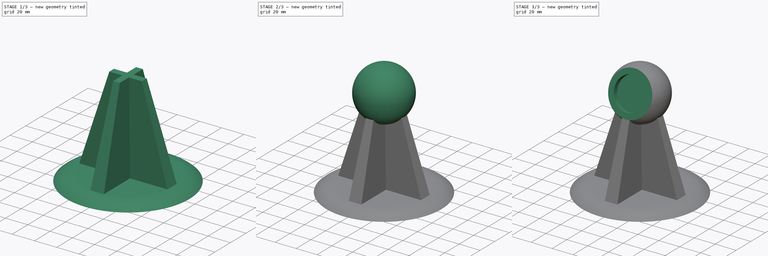
[diagram: build sequence overview — one tinted view per stage of 3, left to right]
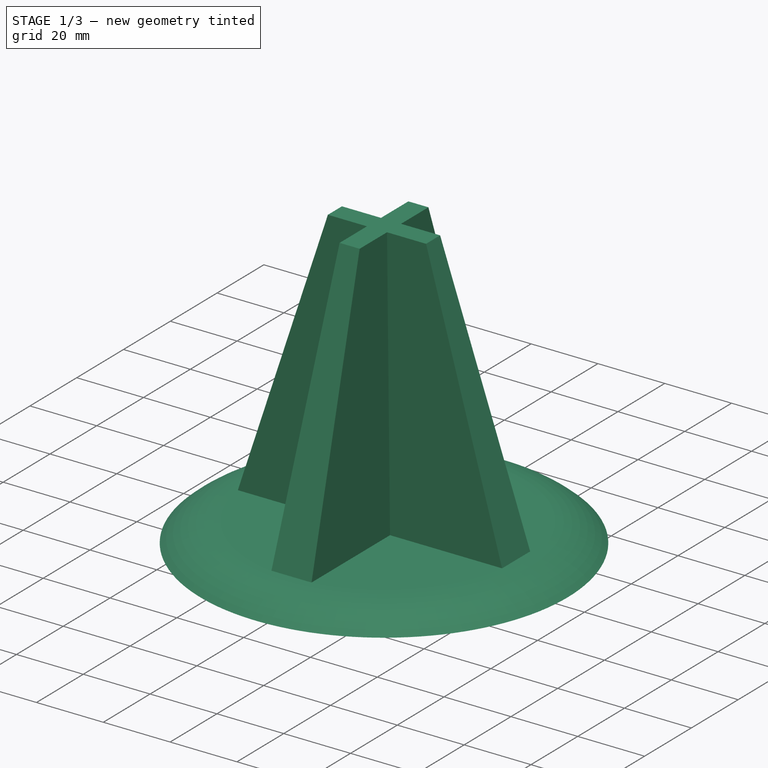
[diagram: stage 1 of 3 — iso view after this stage's code; geometry added in this stage tinted green]
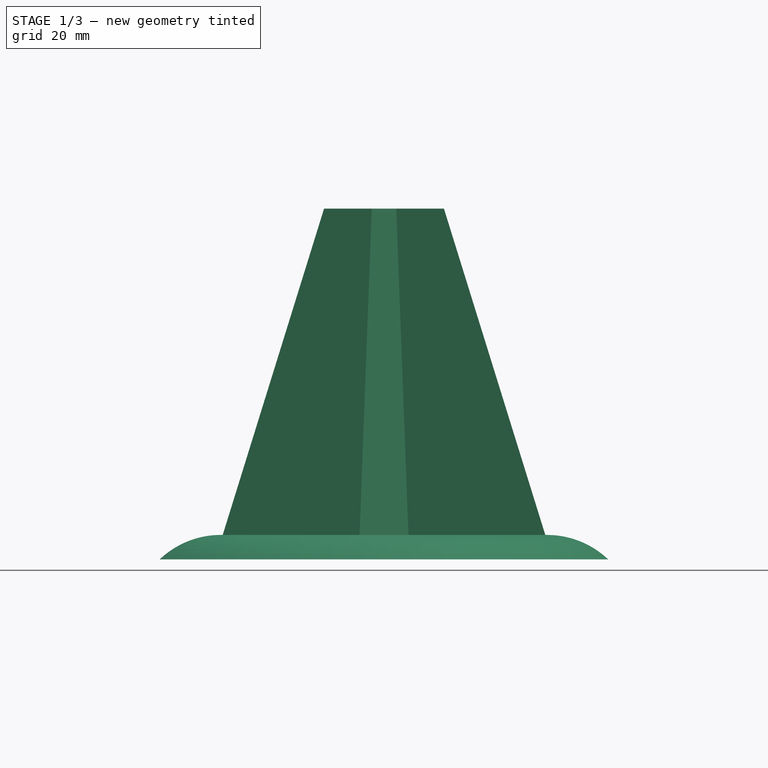
[diagram: stage 1 of 3 — front view after this stage's code; geometry added in this stage tinted green]
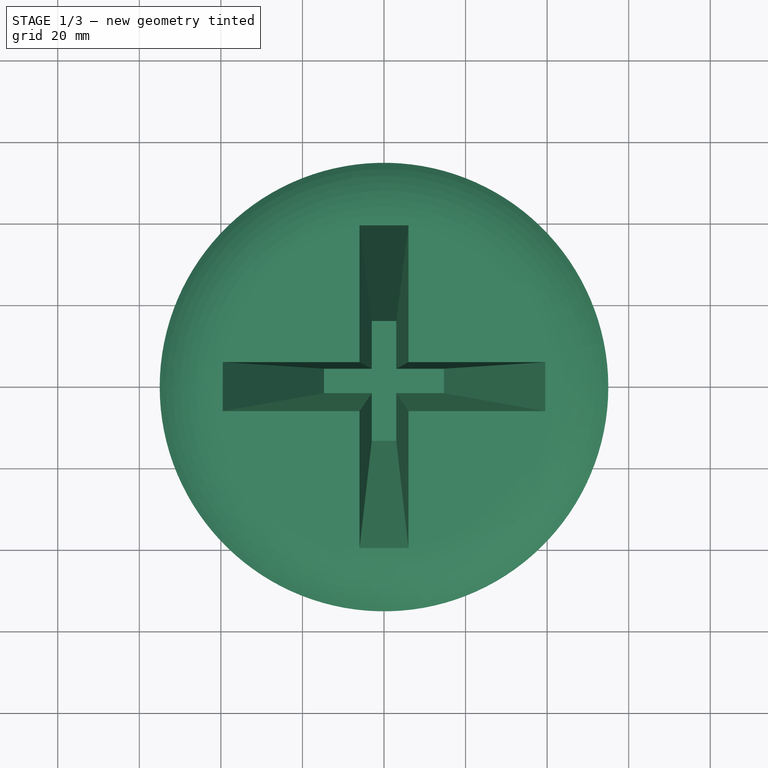
[diagram: stage 1 of 3 — top view after this stage's code; geometry added in this stage tinted green]
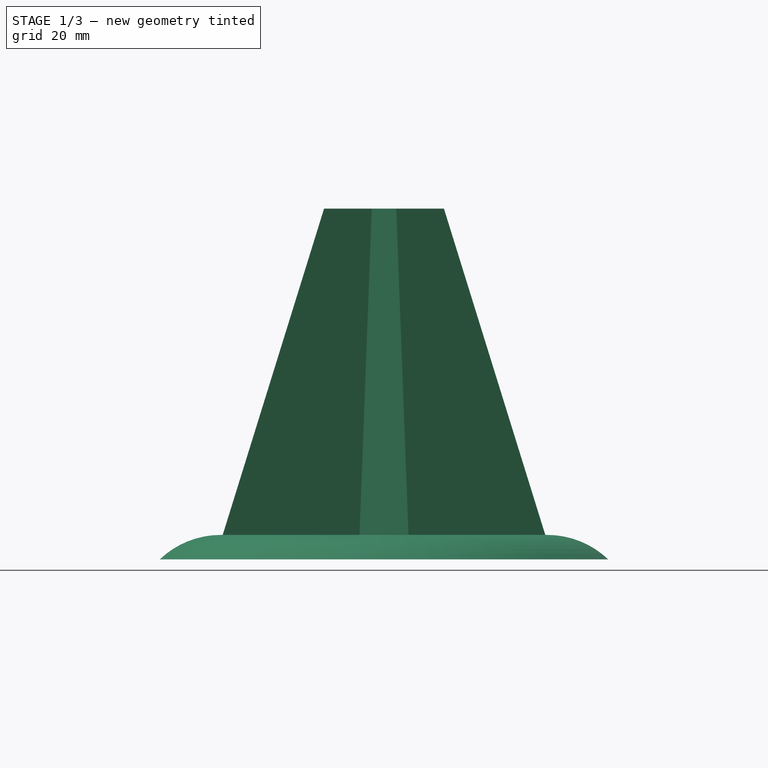
[diagram: stage 1 of 3 — right view after this stage's code; geometry added in this stage tinted green]
FCSTD DOCUMENT  (FreeCAD 0.20R29177 +426 (Git))
Label: project_11
License: All rights reserved
LicenseURL: https://en.wikipedia.org/wiki/All_rights_reserved
objects: Sketcher::SketchObject×6, PartDesign::Pocket×2, PartDesign::Revolution×1, PartDesign::AdditiveLoft×1, PartDesign::AdditiveSphere×1, PartDesign::Plane×1, PartDesign::Body×1
note: 18 computed .brp shape members not serialized (recipe doc carries the construction recipe); baked Part::Feature solids carry a one-line shape summary decoded from their .brp

FEATURE [Sketcher::SketchObject] Sketch  label="MasterSketch"
  FullyConstrained = true
  MapMode = 5
  Placement = pos=(0,0,0) rot=(1,0,0;1.5708rad)
  Support = -> [XZ_Plane]
  sketch-geometry (7):
    g0: LineSegment StartX=-40 StartY=0 StartZ=0 EndX=0 EndY=0 EndZ=0
    g1: LineSegment StartX=0 StartY=0 StartZ=0 EndX=40 EndY=0 EndZ=0
    g2: LineSegment StartX=40 StartY=0 StartZ=0 EndX=40 EndY=6 EndZ=0
    g3: LineSegment StartX=0 StartY=0 StartZ=0 EndX=0 EndY=80 EndZ=0
    g4: Circle CenterX=0 CenterY=80 CenterZ=0 NormalX=0 NormalY=0 NormalZ=1 AngleXU=0 Radius=15
    g5: LineSegment StartX=0 StartY=80 StartZ=0 EndX=25 EndY=80 EndZ=0
    g6: LineSegment StartX=-40 StartY=0 StartZ=0 EndX=-55 EndY=0 EndZ=0
  constraints (20):
    c: PointOnObject(g0,g-1)
    c: Coincident(g0,g-1)
    c: Coincident(g0,g1)
    c: Horizontal(g1)
    c: Coincident(g1,g2)
    c: Vertical(g2)
    c: DistanceX(g0,g0) = 40  'BaseProfileRadius'
    c: Equal(g0,g1)
    c: DistanceY(g2,g2) = 6  'BaseThickness'
    c: Coincident(g3,g0)
    c: PointOnObject(g3,g-2)
    c: DistanceY(g3,g3) = 80  'Loftheight'
    c: Coincident(g4,g3)
    c: Radius(g4) = 15  'TopProfileRadius'
    c: Coincident(g5,g3)
    c: Horizontal(g5)
    c: DistanceX(g5,g5) = 25  'SphereRadius'
    c: Coincident(g0,g6)
    c: Horizontal(g6)
    c: DistanceX(g6,g6) = 15  'Overhange'
FEATURE [Sketcher::SketchObject] Sketch001
  FullyConstrained = true
  MapMode = 5
  Placement = pos=(0,0,0) rot=(1,0,0;1.5708rad)
  Support = -> [XZ_Plane]
  expr: Constraints[12] = <<MasterSketch>>.Constraints.Overhange
  expr: Constraints[6] = <<MasterSketch>>.Constraints.BaseThickness
  expr: Constraints[7] = <<MasterSketch>>.Constraints.BaseProfileRadius
  sketch-geometry (5):
    g0: LineSegment StartX=0 StartY=-6 StartZ=0 EndX=-40 EndY=-6 EndZ=0
    g1: LineSegment StartX=-40 StartY=-6 StartZ=0 EndX=-55 EndY=-6 EndZ=0
    g2: LineSegment StartX=0 StartY=-6 StartZ=0 EndX=0 EndY=0 EndZ=0
    g3: ArcOfCircle CenterX=-40 CenterY=-21.75 CenterZ=0 NormalX=0 NormalY=0 NormalZ=1 AngleXU=0 Radius=21.75 StartAngle=1.5708 EndAngle=2.33181
    g4: LineSegment StartX=-40 StartY=0 StartZ=0 EndX=0 EndY=0 EndZ=0
  constraints (14):
    c: PointOnObject(g0,g-2)
    c: Horizontal(g0)
    c: Coincident(g0,g1)
    c: Horizontal(g1)
    c: Coincident(g2,g0)
    c: Coincident(g2,g-1)
    c: DistanceY(g2,g2) = 6
    c: DistanceX(g0,g0) = 40
    c: Coincident(g3,g1)
    c: PointOnObject(g3,g-1)
    c: Vertical(g3,g0)
    c: Coincident(g4,g2)
    c: DistanceX(g1,g1) = 15
    c: Tangent(g4,g3) = 1.5708
FEATURE [PartDesign::Revolution] Revolution
  Angle = 360
  Axis = (0,2e-16,1)
  Base = (0,0,0)
  Placement = pos=(0,0,0) rot=(1,0,0;1.5708rad)
  Profile = -> Sketch001
  ReferenceAxis = -> Sketch001 [V_Axis]
  Refine = true
FEATURE [Sketcher::SketchObject] Sketch002  label="TopProfile"
  AttachmentOffset = pos=(0,0,80) rot=(0,0,1;0rad)
  FullyConstrained = true
  MapMode = 5
  Placement = pos=(0,1.78e-14,80) rot=(0,0,1;3.14159rad)
  Support = -> [Revolution]
  expr: .AttachmentOffset.Base.z = <<MasterSketch>>.Constraints.Loftheight
  expr: Constraints[36] = <<MasterSketch>>.Constraints.TopProfileRadius
  sketch-geometry (13):
    g0: Circle CenterX=0 CenterY=0 CenterZ=0 NormalX=0 NormalY=0 NormalZ=1 AngleXU=0 Radius=15
    g1: LineSegment StartX=-3 StartY=14.6969 StartZ=0 EndX=3 EndY=14.6969 EndZ=0
    g2: LineSegment StartX=3 StartY=14.6969 StartZ=0 EndX=3 EndY=3 EndZ=0
    g3: LineSegment StartX=3 StartY=3 StartZ=0 EndX=14.6969 EndY=3 EndZ=0
    g4: LineSegment StartX=14.6969 StartY=3 StartZ=0 EndX=14.6969 EndY=-3 EndZ=0
    g5: LineSegment StartX=14.6969 StartY=-3 StartZ=0 EndX=3 EndY=-3 EndZ=0
    g6: LineSegment StartX=3 StartY=-3 StartZ=0 EndX=3 EndY=-14.6969 EndZ=0
    g7: LineSegment StartX=3 StartY=-14.6969 StartZ=0 EndX=-3 EndY=-14.6969 EndZ=0
    g8: LineSegment StartX=-3 StartY=-14.6969 StartZ=0 EndX=-3 EndY=-3 EndZ=0
    g9: LineSegment StartX=-3 StartY=-3 StartZ=0 EndX=-14.6969 EndY=-3 EndZ=0
    g10: LineSegment StartX=-14.6969 StartY=-3 StartZ=0 EndX=-14.6969 EndY=3 EndZ=0
    g11: LineSegment StartX=-14.6969 StartY=3 StartZ=0 EndX=-3 EndY=3 EndZ=0
    g12: LineSegment StartX=-3 StartY=3 StartZ=0 EndX=-3 EndY=14.6969 EndZ=0
  constraints (38):
    c: PointOnObject(g1,g0)
    c: PointOnObject(g1,g0)
    c: Horizontal(g1)
    c: Coincident(g1,g2)
    c: Vertical(g2)
    c: Coincident(g2,g3)
    c: PointOnObject(g3,g0)
    c: Horizontal(g3)
    c: Coincident(g3,g4)
    c: PointOnObject(g4,g0)
    c: Vertical(g4)
    c: Coincident(g4,g5)
    c: Horizontal(g5)
    c: Coincident(g5,g6)
    c: PointOnObject(g6,g0)
    c: Vertical(g6)
    c: Coincident(g6,g7)
    c: PointOnObject(g7,g0)
    c: Horizontal(g7)
    c: Coincident(g7,g8)
    c: Vertical(g8)
    c: Coincident(g8,g9)
    c: PointOnObject(g9,g0)
    c: Horizontal(g9)
    c: Coincident(g9,g10)
    c: PointOnObject(g10,g0)
    c: Vertical(g10)
    c: Coincident(g10,g11)
    c: Horizontal(g11)
    c: Coincident(g11,g12)
    c: Coincident(g12,g1)
    c: Vertical(g12)
    c: Vertical(g11,g8)
    c: Horizontal(g11,g2)
    c: Equal(g11,g12)
    c: DistanceX(g1,g1) = 6
    c: Radius(g0) = 15
    c: Coincident(g0,g-1)
FEATURE [Sketcher::SketchObject] Sketch003  label="BottomProfile"
  ExternalGeometry = -> [Revolution]
  FullyConstrained = true
  MapMode = 5
  Placement = pos=(0,0,0) rot=(0,0,1;3.14159rad)
  Support = -> [Revolution]
  sketch-geometry (13):
    g0: Circle CenterX=0 CenterY=0 CenterZ=0 NormalX=0 NormalY=0 NormalZ=1 AngleXU=0 Radius=40
    g1: LineSegment StartX=-6 StartY=39.5474 StartZ=0 EndX=6 EndY=39.5474 EndZ=0
    g2: LineSegment StartX=6 StartY=39.5474 StartZ=0 EndX=6 EndY=6 EndZ=0
    g3: LineSegment StartX=6 StartY=6 StartZ=0 EndX=39.5474 EndY=6 EndZ=0
    g4: LineSegment StartX=39.5474 StartY=6 StartZ=0 EndX=39.5474 EndY=-6 EndZ=0
    g5: LineSegment StartX=39.5474 StartY=-6 StartZ=0 EndX=6 EndY=-6 EndZ=0
    g6: LineSegment StartX=6 StartY=-6 StartZ=0 EndX=6 EndY=-39.5474 EndZ=0
    g7: LineSegment StartX=6 StartY=-39.5474 StartZ=0 EndX=-6 EndY=-39.5474 EndZ=0
    g8: LineSegment StartX=-6 StartY=-39.5474 StartZ=0 EndX=-6 EndY=-6 EndZ=0
    g9: LineSegment StartX=-6 StartY=-6 StartZ=0 EndX=-39.5474 EndY=-6 EndZ=0
    g10: LineSegment StartX=-39.5474 StartY=-6 StartZ=0 EndX=-39.5474 EndY=6 EndZ=0
    g11: LineSegment StartX=-39.5474 StartY=6 StartZ=0 EndX=-6 EndY=6 EndZ=0
    g12: LineSegment StartX=-6 StartY=6 StartZ=0 EndX=-6 EndY=39.5474 EndZ=0
  constraints (38):
    c: Coincident(g0,g-3)
    c: PointOnObject(g1,g0)
    c: PointOnObject(g1,g0)
    c: Horizontal(g1)
    c: Coincident(g1,g2)
    c: Vertical(g2)
    c: Coincident(g2,g3)
    c: PointOnObject(g3,g0)
    c: Horizontal(g3)
    c: Coincident(g3,g4)
    c: PointOnObject(g4,g0)
    c: Vertical(g4)
    c: Coincident(g4,g5)
    c: Horizontal(g5)
    c: Coincident(g5,g6)
    c: PointOnObject(g6,g0)
    c: Vertical(g6)
    c: Coincident(g6,g7)
    c: PointOnObject(g7,g0)
    c: Horizontal(g7)
    c: Coincident(g7,g8)
    c: Vertical(g8)
    c: Coincident(g8,g9)
    c: PointOnObject(g9,g0)
    c: Horizontal(g9)
    c: Coincident(g9,g10)
    c: PointOnObject(g10,g0)
    c: Vertical(g10)
    c: Coincident(g10,g11)
    c: Horizontal(g11)
    c: Coincident(g11,g12)
    c: Coincident(g12,g1)
    c: Vertical(g12)
    c: Vertical(g11,g8)
    c: Horizontal(g11,g2)
    c: Equal(g11,g12)
    c: Equal(g0,g-3)
    c: DistanceX(g1,g1) = 12
FEATURE [PartDesign::AdditiveLoft] AdditiveLoft
  BaseFeature = -> Revolution
  Closed = false
  Placement = pos=(0,0,0) rot=(1,0,0;1.5708rad)
  Profile = -> Sketch003
  Refine = true
  Ruled = false
  Sections = -> [Sketch002]
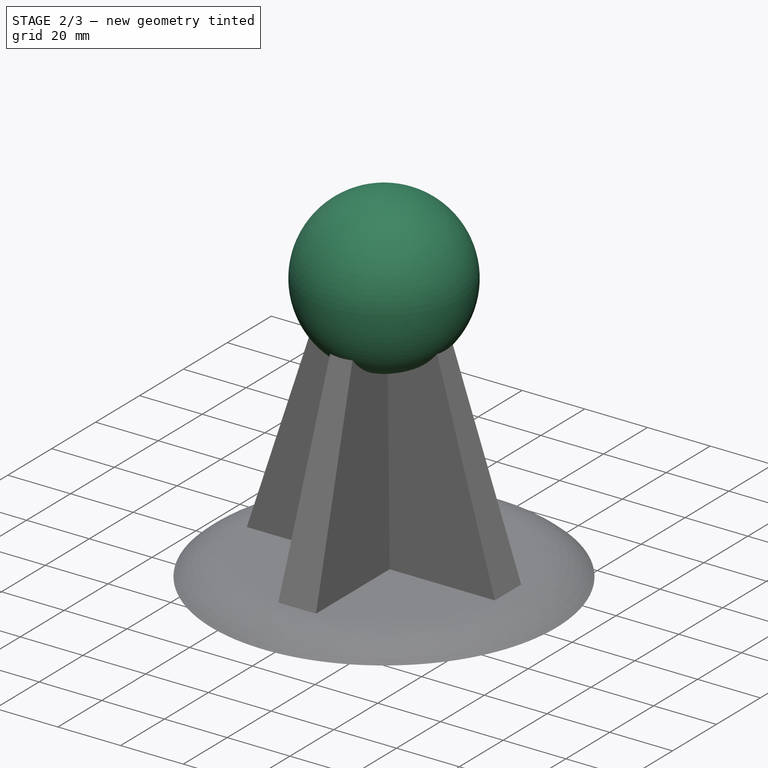
[diagram: stage 2 of 3 — iso view after this stage's code; geometry added in this stage tinted green]
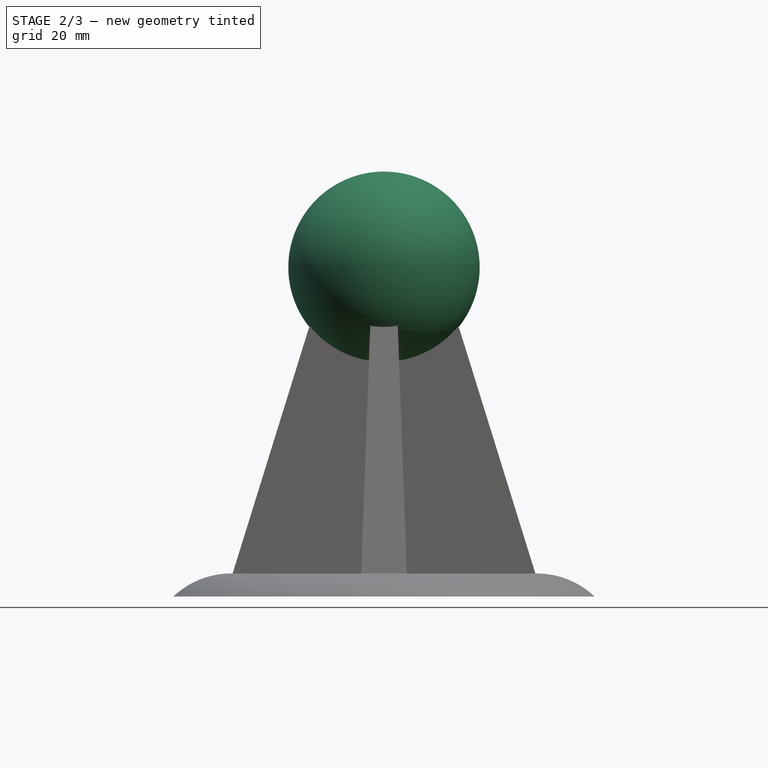
[diagram: stage 2 of 3 — front view after this stage's code; geometry added in this stage tinted green]
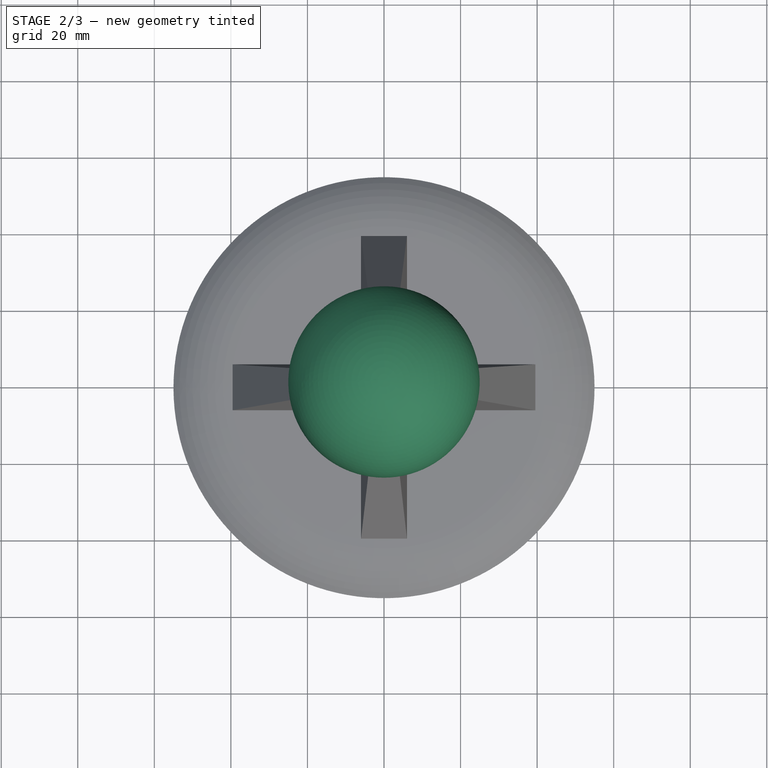
[diagram: stage 2 of 3 — top view after this stage's code; geometry added in this stage tinted green]
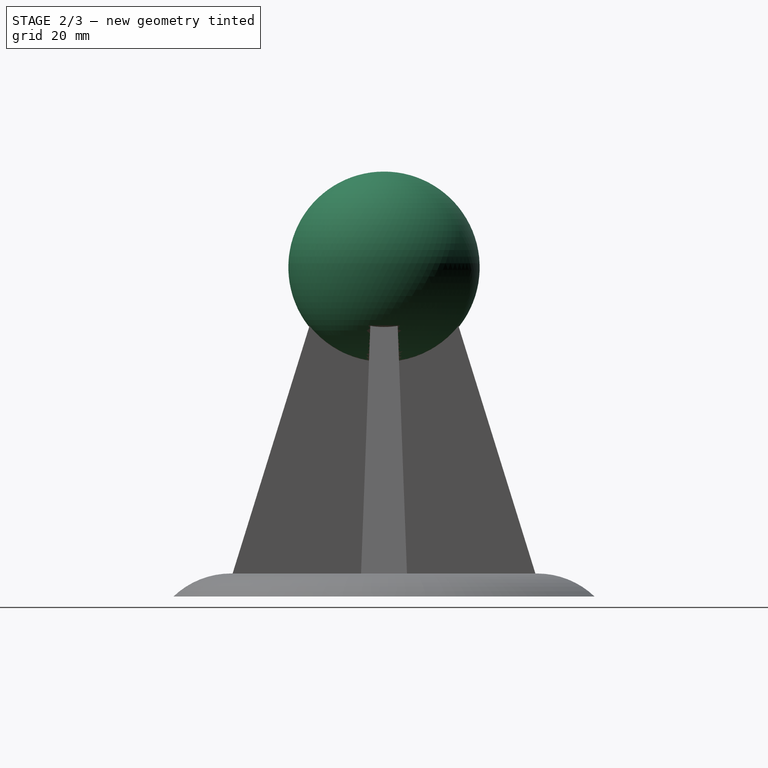
[diagram: stage 2 of 3 — right view after this stage's code; geometry added in this stage tinted green]
FEATURE [PartDesign::AdditiveSphere] Sphere
  Angle1 = -90
  Angle2 = 90
  Angle3 = 360
  AttacherType = Attacher::AttachEngine3D
  BaseFeature = -> AdditiveLoft
  MapMode = 5
  Placement = pos=(0,-1.78e-14,80) rot=(0,0,1;3.14159rad)
  Radius = 25
  Refine = true
  Support = -> [AdditiveLoft]
  expr: Radius = <<MasterSketch>>.Constraints.SphereRadius
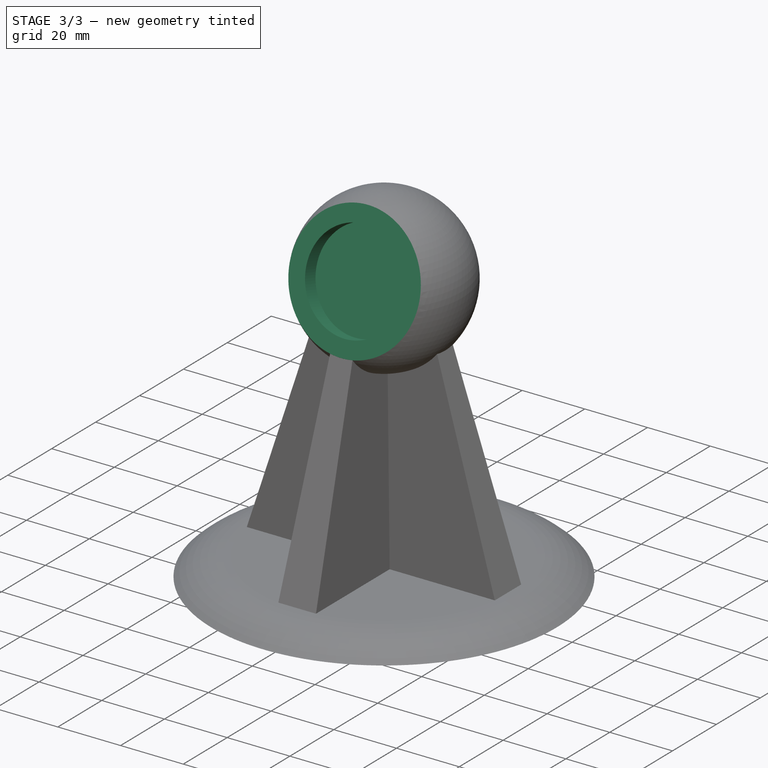
[diagram: stage 3 of 3 — iso view after this stage's code; geometry added in this stage tinted green]
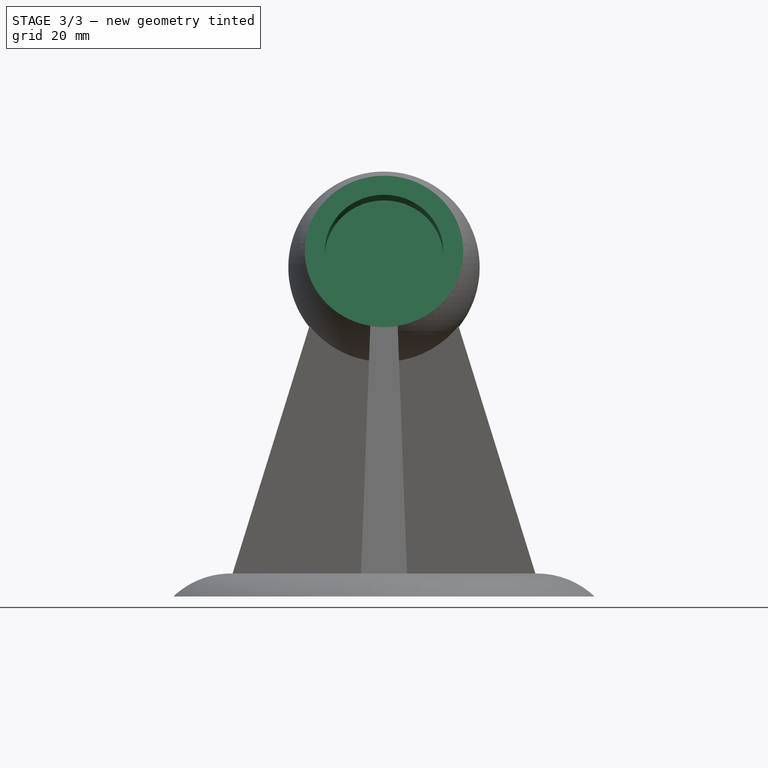
[diagram: stage 3 of 3 — front view after this stage's code; geometry added in this stage tinted green]
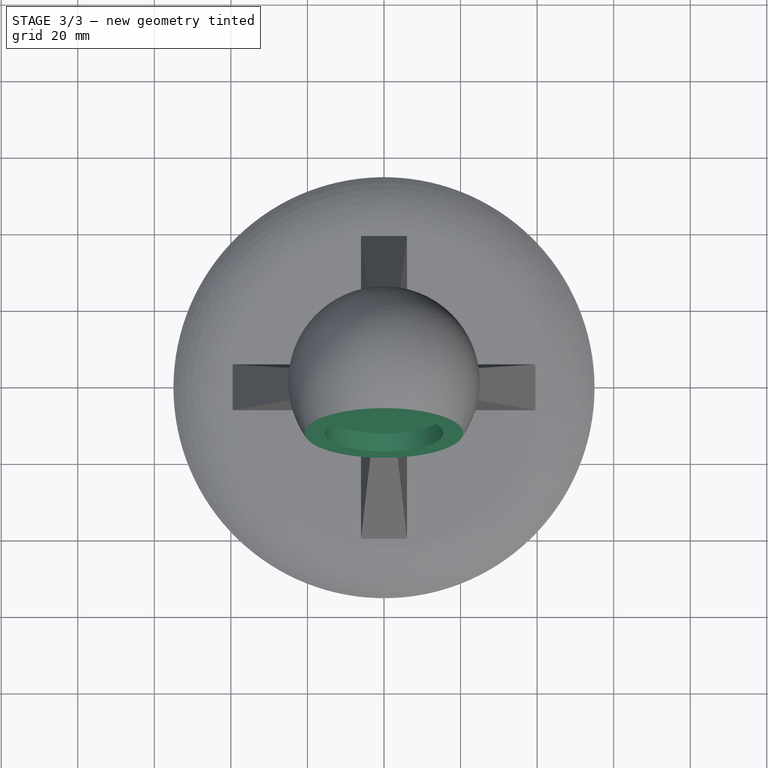
[diagram: stage 3 of 3 — top view after this stage's code; geometry added in this stage tinted green]
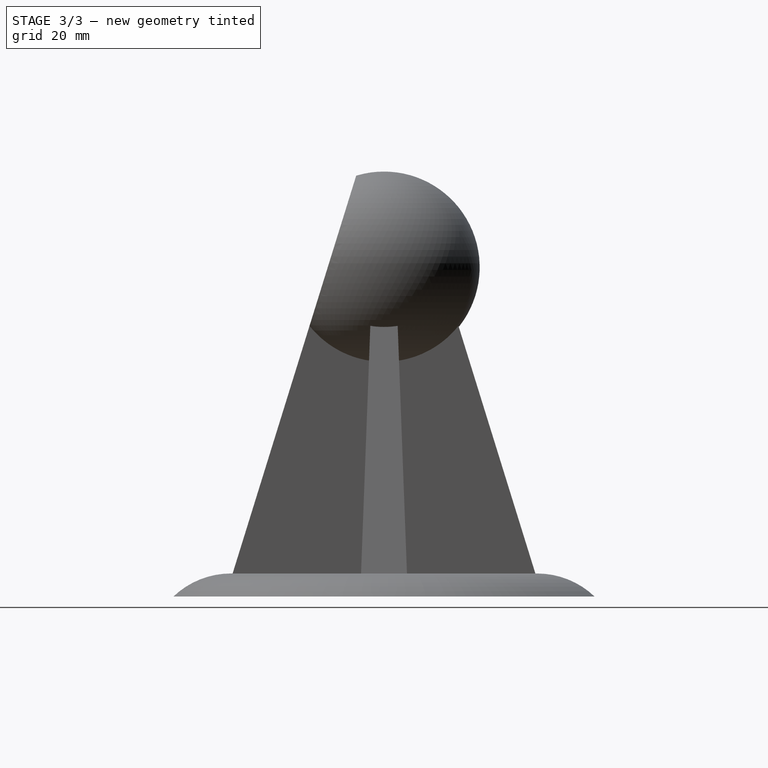
[diagram: stage 3 of 3 — right view after this stage's code; geometry added in this stage tinted green]
FEATURE [PartDesign::Plane] DatumPlane
  Length = 136.265
  MapMode = 45
  Placement = pos=(1.1674e-12,-30.3719,29.5384) rot=(-1,0,0;1.87198rad)
  ResizeMode = 0
  Support = -> [Sphere]
  Width = 183.044
FEATURE [Sketcher::SketchObject] Sketch004
  ExternalGeometry = -> [Sphere]
  FullyConstrained = true
  MapMode = 5
  Placement = pos=(1.1674e-12,-30.3719,29.5384) rot=(0,-0.593022,0.805186;3.14159rad)
  Support = -> [DatumPlane]
  sketch-geometry (1):
    g0: Circle CenterX=0 CenterY=-58.8043 CenterZ=0 NormalX=0 NormalY=0 NormalZ=1 AngleXU=0 Radius=22.2703
  constraints (3):
    c: PointOnObject(g0,g-2)
    c: PointOnObject(g-3,g0)
    c: PointOnObject(g-4,g0)
FEATURE [PartDesign::Pocket] Pocket
  BaseFeature = -> Sphere
  Direction = (0,0.954987,-0.296649)
  Length = 9
  Length2 = 5
  Placement = pos=(0,-1.78e-14,80) rot=(0,0,1;3.14159rad)
  Profile = -> Sketch004
  ReferenceAxis = -> Sketch004 [N_Axis]
  Refine = true
  Reversed = true
  Type = 1
FEATURE [Sketcher::SketchObject] Sketch005
  FullyConstrained = false
  MapMode = 5
  Placement = pos=(1.8e-15,-13.4036,84.1636) rot=(1,0,0;1.26961rad)
  Support = -> [Pocket]
  sketch-geometry (1):
    g0: Circle CenterX=0 CenterY=0 CenterZ=0 NormalX=0 NormalY=0 NormalZ=1 AngleXU=0 Radius=15.4719
  constraints (1):
    c: Coincident(g0,g-1)
FEATURE [PartDesign::Pocket] Pocket001
  BaseFeature = -> Pocket
  Direction = (-1e-16,0.954987,-0.296649)
  Length = 5
  Length2 = 5
  Placement = pos=(0,-1.78e-14,80) rot=(0,0,1;3.14159rad)
  Profile = -> Sketch005
  ReferenceAxis = -> Sketch005 [N_Axis]
  Refine = true
  Type = 0
FEATURE [PartDesign::Body] Body
  Group = -> [Sketch,Sketch001,Revolution,Sketch002,Sketch003,AdditiveLoft,Sphere,DatumPlane,Sketch004,Pocket,Sketch005,Pocket001]
  Origin = -> Origin
  Tip = -> Pocket001
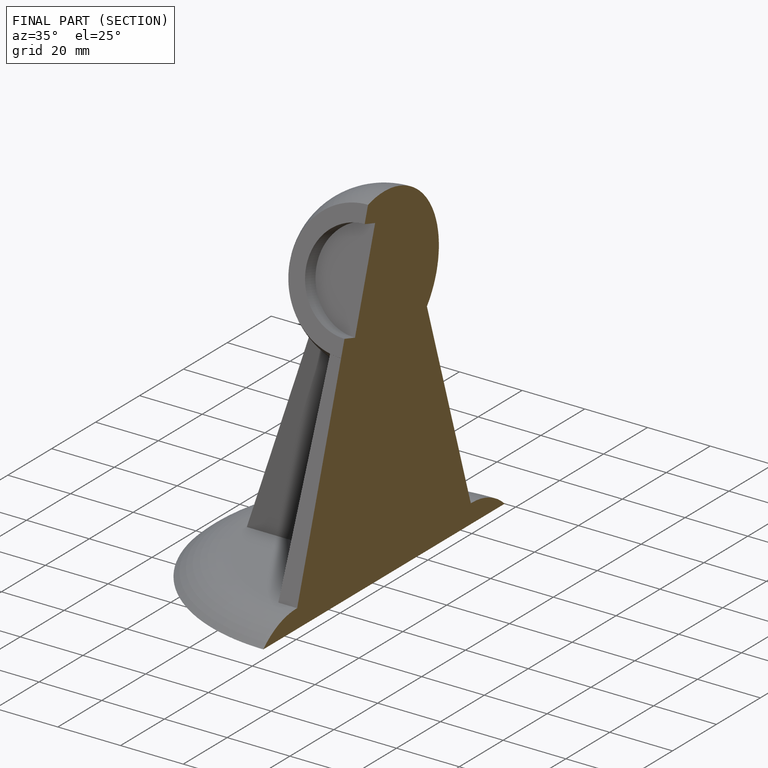
[diagram: finished part — half-section view (interior)]
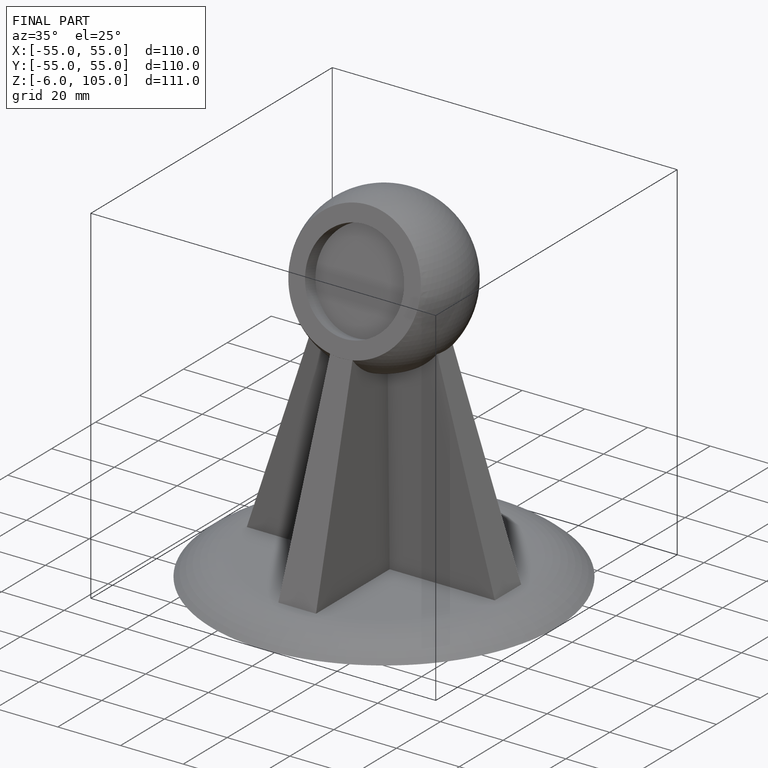
[diagram: finished part — iso view with bounding-box wireframe]
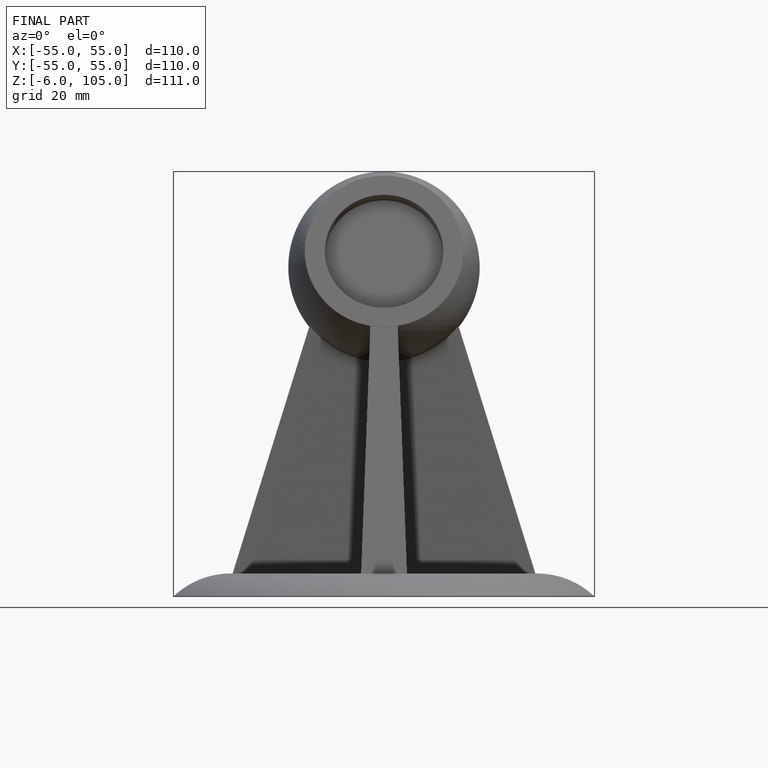
[diagram: finished part — front view with bounding-box wireframe]
